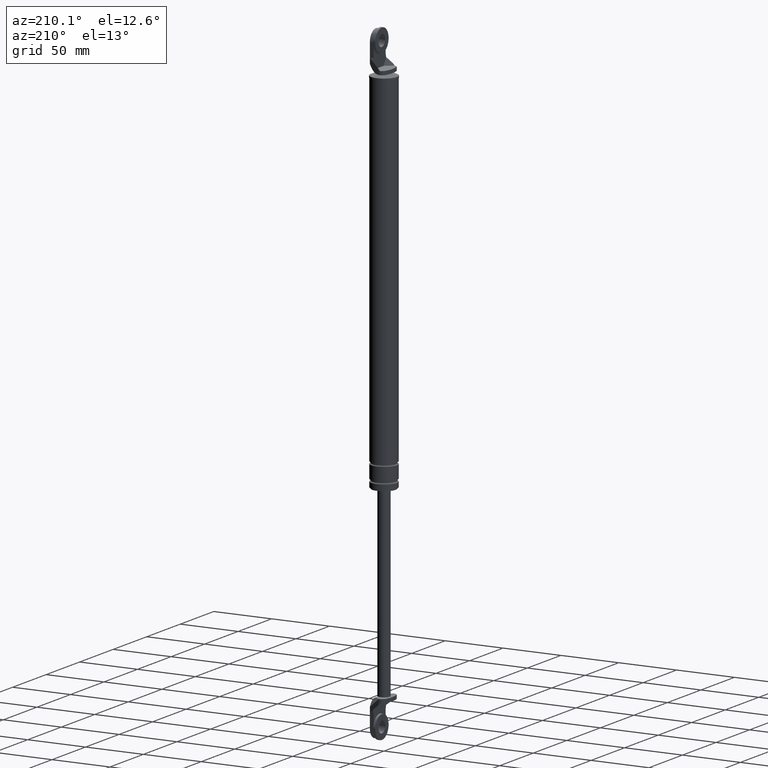
[diagram: clean part render]
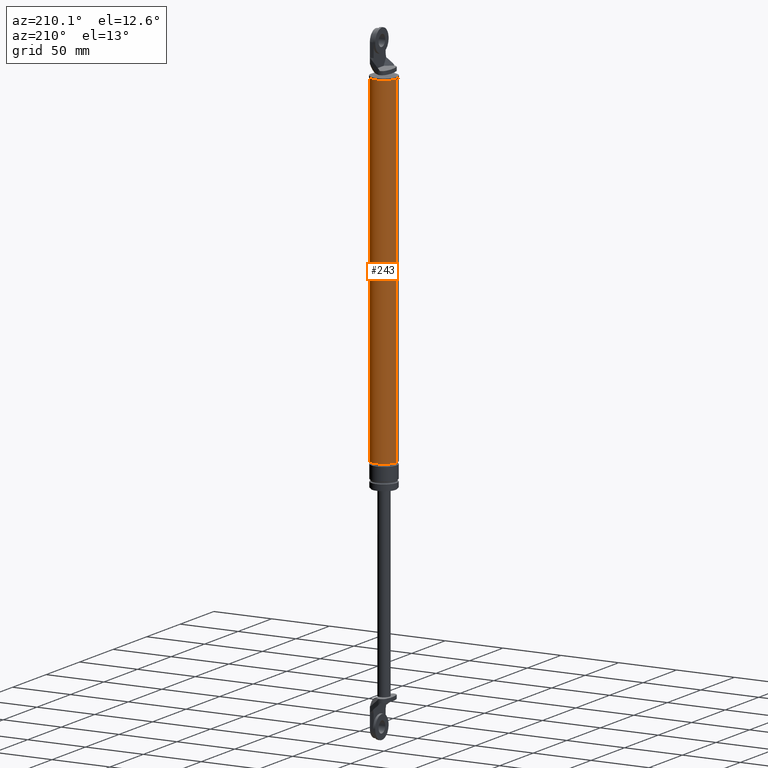
[diagram: same view with one face highlighted and labeled with its STEP entity id]
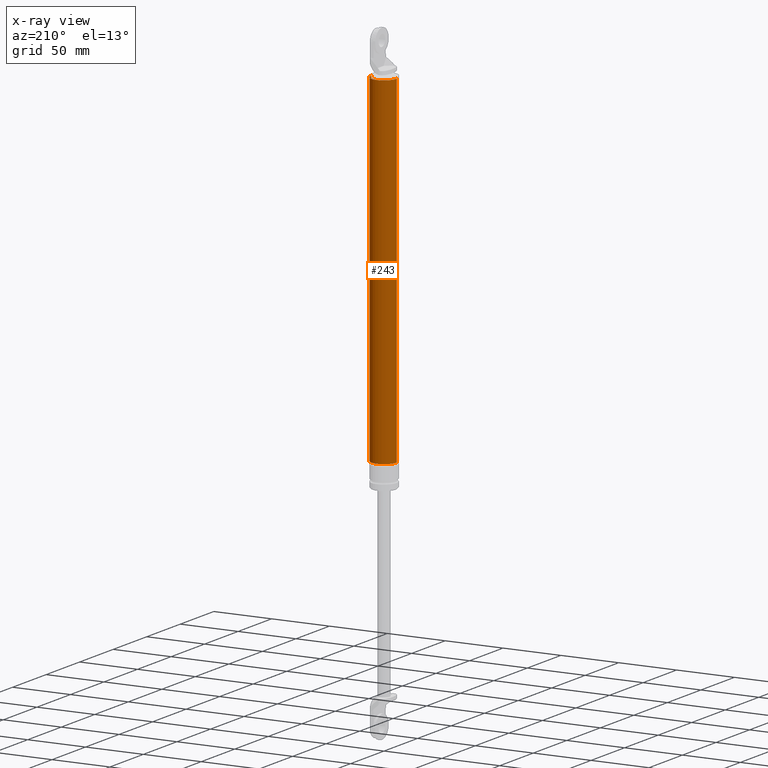
[diagram: x-ray of the same camera — body ghosted, the highlighted face saturated]
A machine part, auxiliary view. The second image highlights one B-rep face of the part: STEP entity #243.
The next image is the same camera in x-ray: the body ghosted, the highlighted face saturated — about 0% of this face is hidden behind the body in this view.
In plain terms, the highlighted cylindrical surface (edge-blend (fillet) strip) has radius 11 mm, axis along (0, 0, 1).
Its self-contained STEP definition (entity closure, byte-faithful):
#243=ADVANCED_FACE('',(#685),#684,.T.);
#684=CYLINDRICAL_SURFACE('',#1402,1.10000000000E+001);
#685=FACE_OUTER_BOUND('',#1403,.T.);
#1399=CARTESIAN_POINT('',(0.00000000000E+000,3.58204186421E-014,0.00000000000E+000));
#1400=DIRECTION('',(-0.00000000000E+000,-0.00000000000E+000,1.00000000000E+000));
#1401=DIRECTION('',(1.00000000000E+000,0.00000000000E+000,0.00000000000E+000));
#1402=AXIS2_PLACEMENT_3D('',#1399,#1400,#1401);
#1403=EDGE_LOOP('',(#1950,#1951,#1952,#1953));
#1950=ORIENTED_EDGE('',*,*,#2215,.T.);
#1951=ORIENTED_EDGE('',*,*,#2261,.F.);
#1952=ORIENTED_EDGE('',*,*,#2262,.F.);
#1953=ORIENTED_EDGE('',*,*,#2263,.T.);
#2215=EDGE_CURVE('',#2737,#2736,#2744,.T.);
#2261=EDGE_CURVE('',#3046,#2736,#3047,.T.);
#2262=EDGE_CURVE('',#3053,#3046,#3054,.T.);
#2263=EDGE_CURVE('',#3053,#2737,#3060,.T.);
#2736=VERTEX_POINT('',#3916);
#2737=VERTEX_POINT('',#3917);
#2744=CIRCLE('',#3925,1.10000000000E+001);
#3046=VERTEX_POINT('',#4103);
#3047=(BOUNDED_CURVE() B_SPLINE_CURVE(1,(#4104,#4105),.UNSPECIFIED.,.F.,.F.) B_SPLINE_CURVE_WITH_KNOTS((2,2),(3.18471337672E-002,9.68152866275E-001),.UNSPECIFIED.) CURVE() GEOMETRIC_REPRESENTATION_ITEM() RATIONAL_B_SPLINE_CURVE((1.00000000000E+000,1.00000000000E+000)) REPRESENTATION_ITEM('') );
#3053=VERTEX_POINT('',#4106);
#3054=CIRCLE('',#4110,1.10000000000E+001);
#3060=(BOUNDED_CURVE() B_SPLINE_CURVE(1,(#4111,#4112),.UNSPECIFIED.,.F.,.F.) B_SPLINE_CURVE_WITH_KNOTS((2,2),(3.18471337580E-002,9.68152866242E-001),.UNSPECIFIED.) CURVE() GEOMETRIC_REPRESENTATION_ITEM() RATIONAL_B_SPLINE_CURVE((7.50000000000E-001,7.50000000000E-001)) REPRESENTATION_ITEM('') );
#3916=CARTESIAN_POINT('',(1.10000000000E+001,3.61192557345E-014,8.49999850000E+001));
#3917=CARTESIAN_POINT('',(-1.10000000000E+001,3.58204186421E-014,8.49999850000E+001));
#3922=CARTESIAN_POINT('',(0.00000000000E+000,3.58204186421E-014,8.49999850000E+001));
#3923=DIRECTION('',(-0.00000000000E+000,0.00000000000E+000,-1.00000000000E+000));
#3924=DIRECTION('',(-1.00000000000E+000,-1.22460635382E-016,0.00000000000E+000));
#3925=AXIS2_PLACEMENT_3D('',#3922,#3923,#3924);
#4103=CARTESIAN_POINT('',(1.10000000000E+001,3.61192557345E-014,-2.09000015000E+002));
#4104=CARTESIAN_POINT('',(1.10000000000E+001,3.58204186421E-014,-2.09000014997E+002));
#4105=CARTESIAN_POINT('',(1.10000000000E+001,3.58204186421E-014,8.49999850104E+001));
#4106=CARTESIAN_POINT('',(-1.10000000000E+001,3.58204186421E-014,-2.09000015000E+002));
#4107=CARTESIAN_POINT('',(0.00000000000E+000,3.58204186421E-014,-2.09000015000E+002));
#4108=DIRECTION('',(-0.00000000000E+000,0.00000000000E+000,-1.00000000000E+000));
#4109=DIRECTION('',(-1.00000000000E+000,-1.22460635382E-016,0.00000000000E+000));
#4110=AXIS2_PLACEMENT_3D('',#4107,#4108,#4109);
#4111=CARTESIAN_POINT('',(-1.10000000000E+001,3.55271367880E-014,-2.09000015000E+002));
#4112=CARTESIAN_POINT('',(-1.10000000000E+001,3.55271367880E-014,8.49999850000E+001));